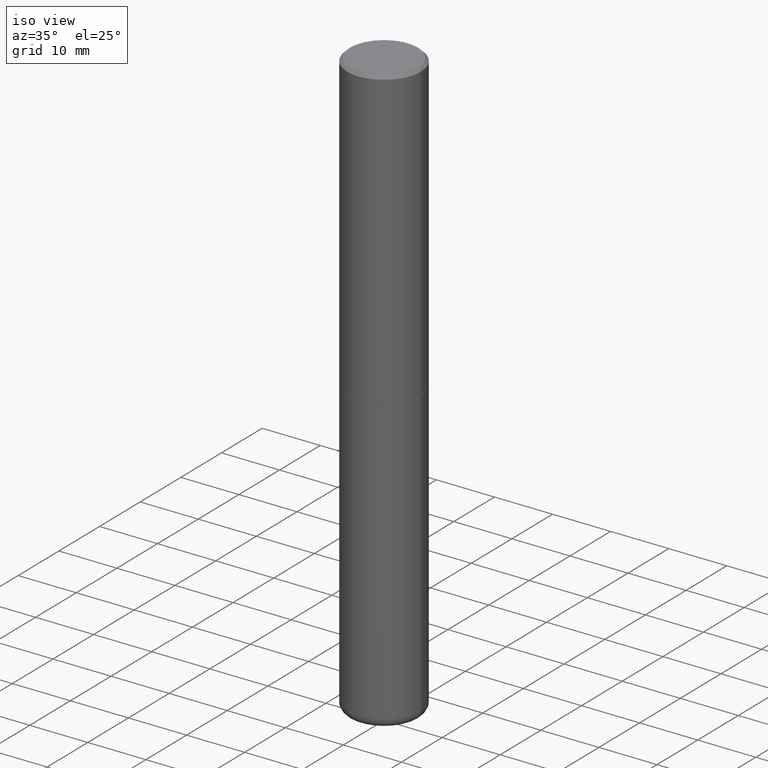
[diagram: clean part render]
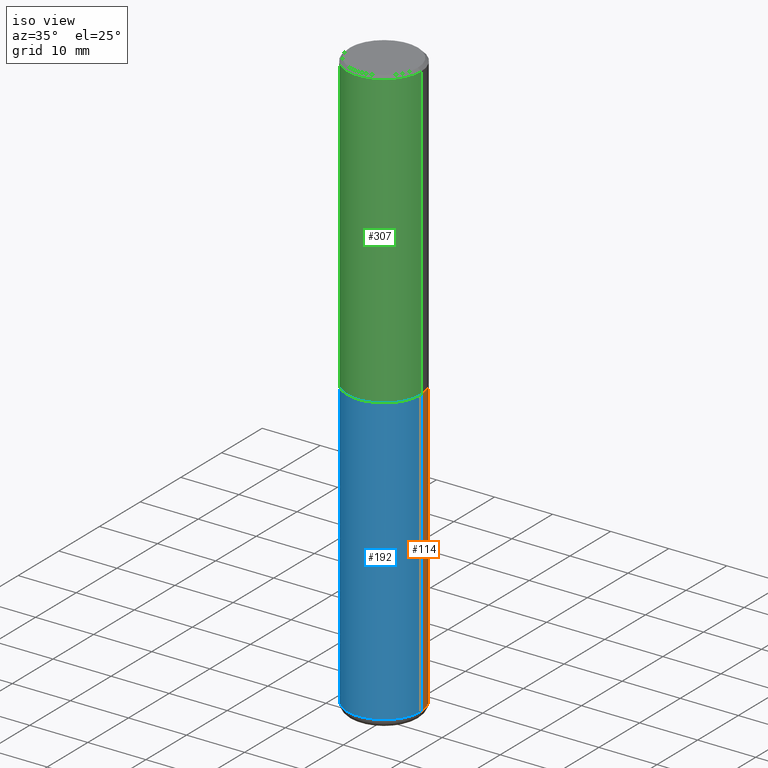
[diagram: same view with three faces highlighted in distinct colors, each labeled with its STEP entity id]
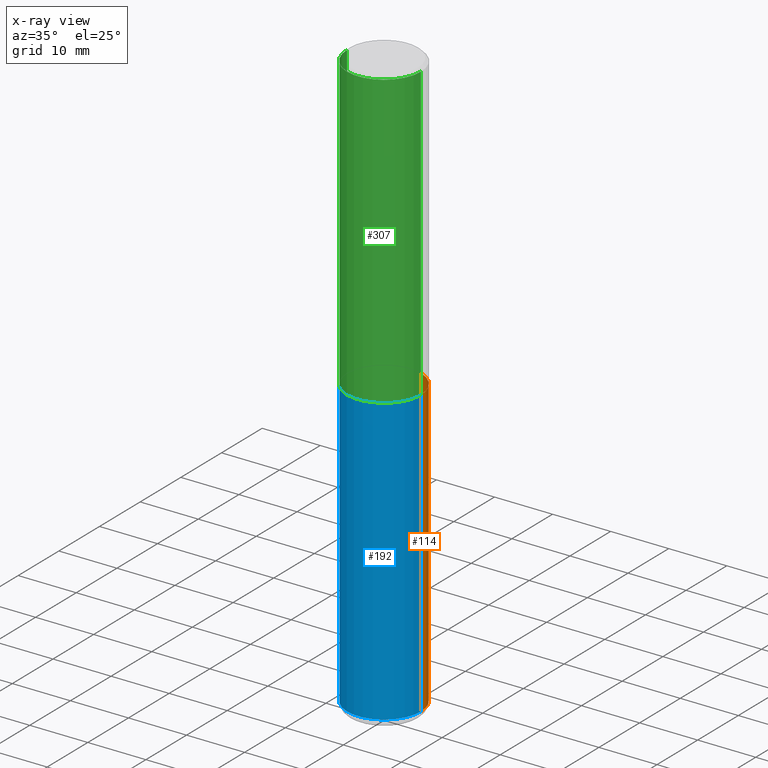
[diagram: x-ray of the same camera — body ghosted, the three highlighted faces saturated]
A machine part, iso view with three faces highlighted in distinct colors.
The next image is the same camera in x-ray (body ghosted, the three faces saturated) — at least one of them is partly hidden behind the body in this view.
Their STEP definitions:

[orange] entity #114 — the highlighted cylindrical surface (partial cylindrical patch) has radius 6.35 mm, axis along (-0, 0, 1).
#13 = CARTESIAN_POINT ( 'NONE',  ( 4.890937612370273194E-29, -6.982962677686291165E-15, -2.000000000000000000 ) ) ;
#21 = CARTESIAN_POINT ( 'NONE',  ( -0.2500000000000000000, 1.776356839400250465E-15, -1.229733772563726445E-29 ) ) ;
#37 = EDGE_LOOP ( 'NONE', ( #308, #123, #63, #151 ) ) ;
#41 = EDGE_CURVE ( 'NONE', #127, #400, #57, .T. ) ;
#46 = VERTEX_POINT ( 'NONE', #370 ) ;
#51 = CARTESIAN_POINT ( 'NONE',  ( 9.635147096369438236E-29, -1.375643647504199401E-14, -3.939999999999999947 ) ) ;
#57 = LINE ( 'NONE', #332, #105 ) ;
#63 = ORIENTED_EDGE ( 'NONE', *, *, #214, .F. ) ;
#65 = AXIS2_PLACEMENT_3D ( 'NONE', #51, #255, #366 ) ;
#87 = CARTESIAN_POINT ( 'NONE',  ( -0.2500000000000000000, -8.593342736963892519E-15, -2.000000000000000000 ) ) ;
#101 = VECTOR ( 'NONE', #254, 39.37007874015748143 ) ;
#105 = VECTOR ( 'NONE', #188, 39.37007874015748143 ) ;
#106 = FACE_OUTER_BOUND ( 'NONE', #37, .T. ) ;
#107 = CARTESIAN_POINT ( 'NONE',  ( 0.2500000000000000000, -1.550217714446356069E-14, -3.939999999999999947 ) ) ;
#109 = DIRECTION ( 'NONE',  ( -2.445468806185136597E-29, 3.491481338843145583E-15, 1.000000000000000000 ) ) ;
#114 = ADVANCED_FACE ( 'NONE', ( #106 ), #173, .T. ) ;
#123 = ORIENTED_EDGE ( 'NONE', *, *, #422, .T. ) ;
#127 = VERTEX_POINT ( 'NONE', #107 ) ;
#147 = CARTESIAN_POINT ( 'NONE',  ( 0.2500000000000000000, -8.728703347107857054E-15, -2.000000000000000000 ) ) ;
#151 = ORIENTED_EDGE ( 'NONE', *, *, #41, .F. ) ;
#156 = CIRCLE ( 'NONE', #65, 0.2500000000000000000 ) ;
#173 = CYLINDRICAL_SURFACE ( 'NONE', #401, 0.2500000000000000000 ) ;
#185 = AXIS2_PLACEMENT_3D ( 'NONE', #13, #109, #379 ) ;
#188 = DIRECTION ( 'NONE',  ( -2.445468806185136877E-29, 3.491481338843145188E-15, 1.000000000000000000 ) ) ;
#190 = VERTEX_POINT ( 'NONE', #87 ) ;
#214 = EDGE_CURVE ( 'NONE', #400, #190, #374, .T. ) ;
#241 = DIRECTION ( 'NONE',  ( 1.000000000000000000, -6.982962677686266711E-15, 4.876176775795935793E-29 ) ) ;
#254 = DIRECTION ( 'NONE',  ( -2.445468806185136877E-29, 3.491481338843145188E-15, 1.000000000000000000 ) ) ;
#255 = DIRECTION ( 'NONE',  ( -2.445468806185136597E-29, 3.491481338843145583E-15, 1.000000000000000000 ) ) ;
#308 = ORIENTED_EDGE ( 'NONE', *, *, #348, .T. ) ;
#318 = CARTESIAN_POINT ( 'NONE',  ( 0.000000000000000000, 0.000000000000000000, 0.000000000000000000 ) ) ;
#332 = CARTESIAN_POINT ( 'NONE',  ( 0.2500000000000000000, -1.745740669421566678E-15, 1.219044193948983948E-29 ) ) ;
#348 = EDGE_CURVE ( 'NONE', #127, #46, #156, .T. ) ;
#360 = LINE ( 'NONE', #21, #101 ) ;
#366 = DIRECTION ( 'NONE',  ( 1.000000000000000000, -6.982962677686270655E-15, 0.000000000000000000 ) ) ;
#370 = CARTESIAN_POINT ( 'NONE',  ( -0.2500000000000000000, -1.198007963564174355E-14, -3.939999999999999947 ) ) ;
#374 = CIRCLE ( 'NONE', #185, 0.2500000000000000000 ) ;
#379 = DIRECTION ( 'NONE',  ( 1.000000000000000000, -6.982962677686266711E-15, 0.000000000000000000 ) ) ;
#400 = VERTEX_POINT ( 'NONE', #147 ) ;
#401 = AXIS2_PLACEMENT_3D ( 'NONE', #318, #416, #241 ) ;
#416 = DIRECTION ( 'NONE',  ( -2.445468806185136597E-29, 3.491481338843145583E-15, 1.000000000000000000 ) ) ;
#422 = EDGE_CURVE ( 'NONE', #46, #190, #360, .T. ) ;

[blue] entity #192 — the highlighted cylindrical surface (partial cylindrical patch) has radius 6.35 mm, axis along (-0, 0, 1).
#21 = CARTESIAN_POINT ( 'NONE',  ( -0.2500000000000000000, 1.776356839400250465E-15, -1.229733772563726445E-29 ) ) ;
#41 = EDGE_CURVE ( 'NONE', #127, #400, #57, .T. ) ;
#46 = VERTEX_POINT ( 'NONE', #370 ) ;
#57 = LINE ( 'NONE', #332, #105 ) ;
#87 = CARTESIAN_POINT ( 'NONE',  ( -0.2500000000000000000, -8.593342736963892519E-15, -2.000000000000000000 ) ) ;
#94 = DIRECTION ( 'NONE',  ( 1.000000000000000000, -6.982962677686270655E-15, 0.000000000000000000 ) ) ;
#101 = VECTOR ( 'NONE', #254, 39.37007874015748143 ) ;
#105 = VECTOR ( 'NONE', #188, 39.37007874015748143 ) ;
#107 = CARTESIAN_POINT ( 'NONE',  ( 0.2500000000000000000, -1.550217714446356069E-14, -3.939999999999999947 ) ) ;
#119 = DIRECTION ( 'NONE',  ( 1.000000000000000000, -6.982962677686266711E-15, 0.000000000000000000 ) ) ;
#127 = VERTEX_POINT ( 'NONE', #107 ) ;
#147 = CARTESIAN_POINT ( 'NONE',  ( 0.2500000000000000000, -8.728703347107857054E-15, -2.000000000000000000 ) ) ;
#148 = ORIENTED_EDGE ( 'NONE', *, *, #321, .F. ) ;
#188 = DIRECTION ( 'NONE',  ( -2.445468806185136877E-29, 3.491481338843145188E-15, 1.000000000000000000 ) ) ;
#190 = VERTEX_POINT ( 'NONE', #87 ) ;
#192 = ADVANCED_FACE ( 'NONE', ( #297 ), #302, .T. ) ;
#194 = ORIENTED_EDGE ( 'NONE', *, *, #41, .T. ) ;
#207 = AXIS2_PLACEMENT_3D ( 'NONE', #361, #427, #119 ) ;
#223 = DIRECTION ( 'NONE',  ( -2.445468806185136597E-29, 3.491481338843145583E-15, 1.000000000000000000 ) ) ;
#229 = ORIENTED_EDGE ( 'NONE', *, *, #422, .F. ) ;
#254 = DIRECTION ( 'NONE',  ( -2.445468806185136877E-29, 3.491481338843145188E-15, 1.000000000000000000 ) ) ;
#257 = DIRECTION ( 'NONE',  ( -2.445468806185136597E-29, 3.491481338843145583E-15, 1.000000000000000000 ) ) ;
#297 = FACE_OUTER_BOUND ( 'NONE', #335, .T. ) ;
#302 = CYLINDRICAL_SURFACE ( 'NONE', #317, 0.2500000000000000000 ) ;
#317 = AXIS2_PLACEMENT_3D ( 'NONE', #363, #257, #438 ) ;
#321 = EDGE_CURVE ( 'NONE', #190, #400, #326, .T. ) ;
#326 = CIRCLE ( 'NONE', #207, 0.2500000000000000000 ) ;
#332 = CARTESIAN_POINT ( 'NONE',  ( 0.2500000000000000000, -1.745740669421566678E-15, 1.219044193948983948E-29 ) ) ;
#335 = EDGE_LOOP ( 'NONE', ( #229, #419, #194, #148 ) ) ;
#354 = CIRCLE ( 'NONE', #439, 0.2500000000000000000 ) ;
#360 = LINE ( 'NONE', #21, #101 ) ;
#361 = CARTESIAN_POINT ( 'NONE',  ( 4.890937612370273194E-29, -6.982962677686291165E-15, -2.000000000000000000 ) ) ;
#363 = CARTESIAN_POINT ( 'NONE',  ( 0.000000000000000000, 0.000000000000000000, 0.000000000000000000 ) ) ;
#370 = CARTESIAN_POINT ( 'NONE',  ( -0.2500000000000000000, -1.198007963564174355E-14, -3.939999999999999947 ) ) ;
#400 = VERTEX_POINT ( 'NONE', #147 ) ;
#419 = ORIENTED_EDGE ( 'NONE', *, *, #426, .T. ) ;
#422 = EDGE_CURVE ( 'NONE', #46, #190, #360, .T. ) ;
#426 = EDGE_CURVE ( 'NONE', #46, #127, #354, .T. ) ;
#427 = DIRECTION ( 'NONE',  ( -2.445468806185136597E-29, 3.491481338843145583E-15, 1.000000000000000000 ) ) ;
#433 = CARTESIAN_POINT ( 'NONE',  ( 9.635147096369438236E-29, -1.375643647504199401E-14, -3.939999999999999947 ) ) ;
#438 = DIRECTION ( 'NONE',  ( 1.000000000000000000, -6.982962677686266711E-15, 4.876176775795935793E-29 ) ) ;
#439 = AXIS2_PLACEMENT_3D ( 'NONE', #433, #223, #94 ) ;

[green] entity #307 — the highlighted cylindrical surface (partial cylindrical patch) has radius 6.35 mm, axis along (-0, 0, 1).
#4 = AXIS2_PLACEMENT_3D ( 'NONE', #278, #108, #286 ) ;
#7 = ORIENTED_EDGE ( 'NONE', *, *, #355, .F. ) ;
#26 = LINE ( 'NONE', #145, #133 ) ;
#39 = VERTEX_POINT ( 'NONE', #227 ) ;
#44 = CARTESIAN_POINT ( 'NONE',  ( -0.2499999999999997224, 1.675911042644701605E-15, -0.02000000000000005593 ) ) ;
#52 = DIRECTION ( 'NONE',  ( -2.445468806185136877E-29, 3.491481338843145188E-15, 1.000000000000000000 ) ) ;
#62 = CARTESIAN_POINT ( 'NONE',  ( 0.2500000000000000000, -8.725211865769014047E-15, -1.998999999999999888 ) ) ;
#72 = VERTEX_POINT ( 'NONE', #178 ) ;
#73 = AXIS2_PLACEMENT_3D ( 'NONE', #421, #211, #352 ) ;
#75 = EDGE_CURVE ( 'NONE', #72, #256, #391, .T. ) ;
#108 = DIRECTION ( 'NONE',  ( -2.445468806185136597E-29, 3.491481338843145583E-15, 1.000000000000000000 ) ) ;
#133 = VECTOR ( 'NONE', #52, 39.37007874015748143 ) ;
#145 = CARTESIAN_POINT ( 'NONE',  ( -0.2499999999999998612, 1.776356839400249479E-15, -1.229733772563725745E-29 ) ) ;
#150 = DIRECTION ( 'NONE',  ( -2.445468806185136597E-29, 3.491481338843145583E-15, 1.000000000000000000 ) ) ;
#161 = ORIENTED_EDGE ( 'NONE', *, *, #235, .F. ) ;
#178 = CARTESIAN_POINT ( 'NONE',  ( -0.2499999999999999722, -1.748293572161904475E-15, -1.998999999999999888 ) ) ;
#183 = FACE_OUTER_BOUND ( 'NONE', #262, .T. ) ;
#201 = VERTEX_POINT ( 'NONE', #44 ) ;
#211 = DIRECTION ( 'NONE',  ( -2.445468806185136597E-29, 3.491481338843145583E-15, 1.000000000000000000 ) ) ;
#215 = CIRCLE ( 'NONE', #4, 0.2499999999999997224 ) ;
#220 = DIRECTION ( 'NONE',  ( -2.445468806185136877E-29, 3.491481338843145188E-15, 1.000000000000000000 ) ) ;
#227 = CARTESIAN_POINT ( 'NONE',  ( 0.2499999999999997224, -1.784954126219744217E-15, -0.02000000000000005593 ) ) ;
#235 = EDGE_CURVE ( 'NONE', #201, #39, #215, .T. ) ;
#256 = VERTEX_POINT ( 'NONE', #62 ) ;
#261 = CYLINDRICAL_SURFACE ( 'NONE', #385, 0.2499999999999998612 ) ;
#262 = EDGE_LOOP ( 'NONE', ( #7, #434, #373, #161 ) ) ;
#278 = CARTESIAN_POINT ( 'NONE',  ( 4.890937612370287172E-31, -6.982962677686310098E-17, -0.02000000000000005593 ) ) ;
#286 = DIRECTION ( 'NONE',  ( 1.000000000000000000, -6.982962677686266711E-15, 0.000000000000000000 ) ) ;
#307 = ADVANCED_FACE ( 'NONE', ( #183 ), #261, .T. ) ;
#312 = VECTOR ( 'NONE', #220, 39.37007874015748143 ) ;
#329 = EDGE_CURVE ( 'NONE', #256, #39, #359, .T. ) ;
#352 = DIRECTION ( 'NONE',  ( 1.000000000000000000, -6.982962677686266711E-15, 0.000000000000000000 ) ) ;
#355 = EDGE_CURVE ( 'NONE', #72, #201, #26, .T. ) ;
#359 = LINE ( 'NONE', #399, #312 ) ;
#373 = ORIENTED_EDGE ( 'NONE', *, *, #329, .T. ) ;
#385 = AXIS2_PLACEMENT_3D ( 'NONE', #428, #150, #397 ) ;
#391 = CIRCLE ( 'NONE', #73, 0.2500000000000000000 ) ;
#397 = DIRECTION ( 'NONE',  ( 1.000000000000000000, -6.982962677686266711E-15, 4.876176775795935793E-29 ) ) ;
#399 = CARTESIAN_POINT ( 'NONE',  ( 0.2499999999999998612, -1.745740669421565692E-15, 1.219044193948983248E-29 ) ) ;
#421 = CARTESIAN_POINT ( 'NONE',  ( 4.888492143564087591E-29, -6.979471196347447369E-15, -1.998999999999999888 ) ) ;
#428 = CARTESIAN_POINT ( 'NONE',  ( 0.000000000000000000, 0.000000000000000000, 0.000000000000000000 ) ) ;
#434 = ORIENTED_EDGE ( 'NONE', *, *, #75, .T. ) ;